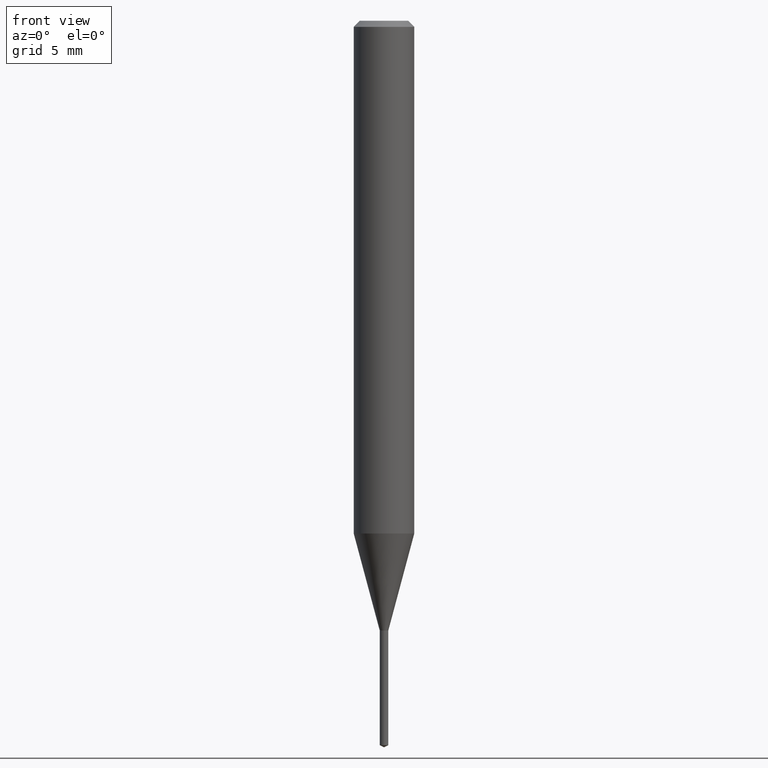
[diagram: clean part render]
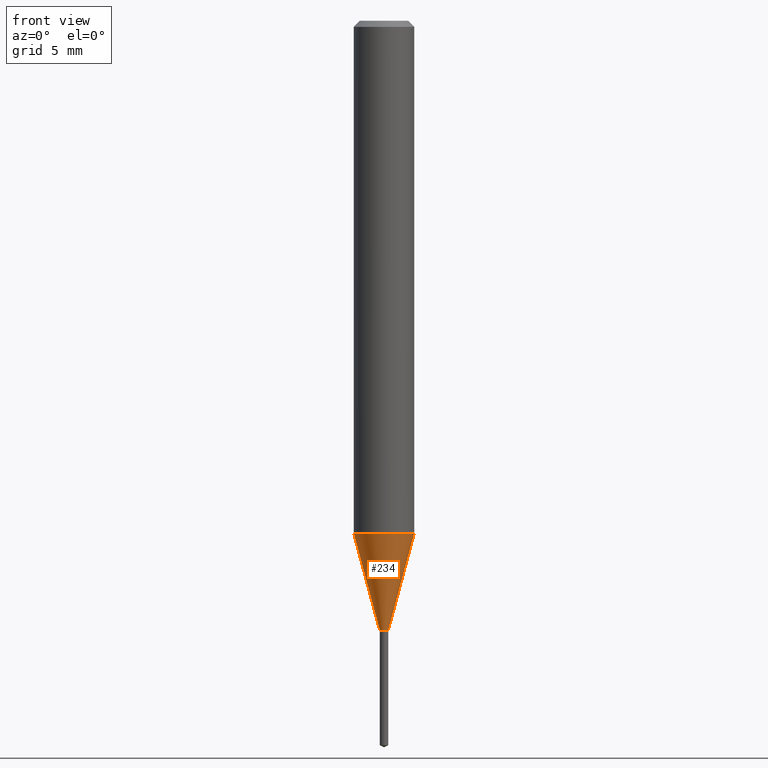
[diagram: same view with one face highlighted and labeled with its STEP entity id]
A machine part, front view. The second image highlights one B-rep face of the part: STEP entity #234.
In plain terms, the highlighted conical surface has half-angle 15 deg.
Its self-contained STEP definition (entity closure, byte-faithful):
#4 = LINE ( 'NONE', #314, #151 ) ;
#6 = VECTOR ( 'NONE', #362, 39.37007874015748854 ) ;
#10 = ORIENTED_EDGE ( 'NONE', *, *, #402, .T. ) ;
#14 = ORIENTED_EDGE ( 'NONE', *, *, #88, .F. ) ;
#18 = EDGE_CURVE ( 'NONE', #206, #130, #51, .T. ) ;
#28 = CARTESIAN_POINT ( 'NONE',  ( -0.008850000000000000228, -4.316307437129247394E-15, -1.259000000000000119 ) ) ;
#51 = CIRCLE ( 'NONE', #474, 0.008850000000000000228 ) ;
#88 = EDGE_CURVE ( 'NONE', #206, #184, #393, .T. ) ;
#96 = DIRECTION ( 'NONE',  ( 1.000000000000000000, -6.982962677686217801E-15, 0.000000000000000000 ) ) ;
#130 = VERTEX_POINT ( 'NONE', #480 ) ;
#147 = DIRECTION ( 'NONE',  ( -2.445468806185136597E-29, 3.491481338843145583E-15, 1.000000000000000000 ) ) ;
#151 = VECTOR ( 'NONE', #461, 39.37007874015748854 ) ;
#183 = CARTESIAN_POINT ( 'NONE',  ( -0.06250000000000013878, -3.252605600253034449E-15, -1.058775474173935471 ) ) ;
#184 = VERTEX_POINT ( 'NONE', #183 ) ;
#191 = DIRECTION ( 'NONE',  ( -2.445468806185136597E-29, 3.491481338843145583E-15, 1.000000000000000000 ) ) ;
#206 = VERTEX_POINT ( 'NONE', #28 ) ;
#221 = CARTESIAN_POINT ( 'NONE',  ( 3.078845226987087249E-29, -4.395775005603521113E-15, -1.259000000000000119 ) ) ;
#230 = CIRCLE ( 'NONE', #348, 0.06250000000000013878 ) ;
#234 = ADVANCED_FACE ( 'NONE', ( #482 ), #363, .T. ) ;
#280 = EDGE_CURVE ( 'NONE', #184, #422, #230, .T. ) ;
#282 = CARTESIAN_POINT ( 'NONE',  ( 3.078845226987087249E-29, -4.395775005603521113E-15, -1.259000000000000119 ) ) ;
#284 = DIRECTION ( 'NONE',  ( -2.445468806185136597E-29, 3.491481338843145583E-15, 1.000000000000000000 ) ) ;
#314 = CARTESIAN_POINT ( 'NONE',  ( 0.008850000000000000228, -4.457574225301043917E-15, -1.259000000000000119 ) ) ;
#326 = CARTESIAN_POINT ( 'NONE',  ( -0.008850000000000000228, -4.332891973488752073E-15, -1.259000000000000119 ) ) ;
#348 = AXIS2_PLACEMENT_3D ( 'NONE', #408, #191, #448 ) ;
#350 = CARTESIAN_POINT ( 'NONE',  ( 0.06250000000000013878, -4.133129977458490706E-15, -1.058775474173935471 ) ) ;
#362 = DIRECTION ( 'NONE',  ( -0.2588190451025279559, 5.211531920934590485E-15, 0.9659258262890662028 ) ) ;
#363 = CONICAL_SURFACE ( 'NONE', #445, 0.008850000000000000228, 0.2617993877991569573 ) ;
#375 = ORIENTED_EDGE ( 'NONE', *, *, #18, .T. ) ;
#391 = ORIENTED_EDGE ( 'NONE', *, *, #280, .F. ) ;
#393 = LINE ( 'NONE', #326, #6 ) ;
#402 = EDGE_CURVE ( 'NONE', #130, #422, #4, .T. ) ;
#408 = CARTESIAN_POINT ( 'NONE',  ( 2.589202394846235411E-29, -3.696694810103098248E-15, -1.058775474173935471 ) ) ;
#422 = VERTEX_POINT ( 'NONE', #350 ) ;
#443 = DIRECTION ( 'NONE',  ( 1.000000000000000000, -6.982962677686217801E-15, 0.000000000000000000 ) ) ;
#445 = AXIS2_PLACEMENT_3D ( 'NONE', #221, #147, #443 ) ;
#448 = DIRECTION ( 'NONE',  ( 1.000000000000000000, -6.982962677686262766E-15, 0.000000000000000000 ) ) ;
#461 = DIRECTION ( 'NONE',  ( 0.2588190451025279559, 1.565188264969568522E-15, 0.9659258262890662028 ) ) ;
#462 = EDGE_LOOP ( 'NONE', ( #14, #375, #10, #391 ) ) ;
#474 = AXIS2_PLACEMENT_3D ( 'NONE', #282, #284, #96 ) ;
#480 = CARTESIAN_POINT ( 'NONE',  ( 0.008850000000000000228, -4.457574225301043917E-15, -1.259000000000000119 ) ) ;
#482 = FACE_OUTER_BOUND ( 'NONE', #462, .T. ) ;